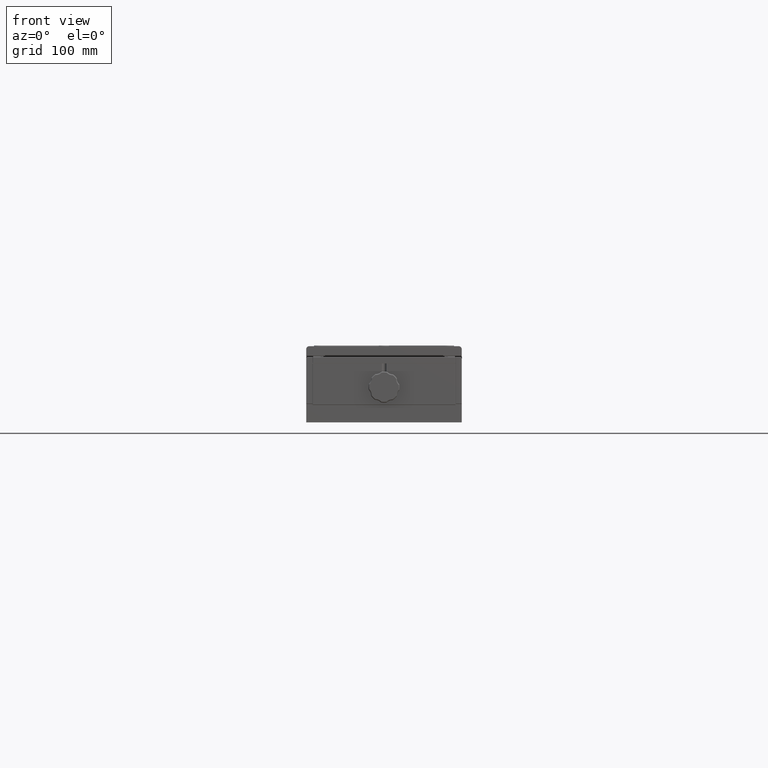
[diagram: clean part render]
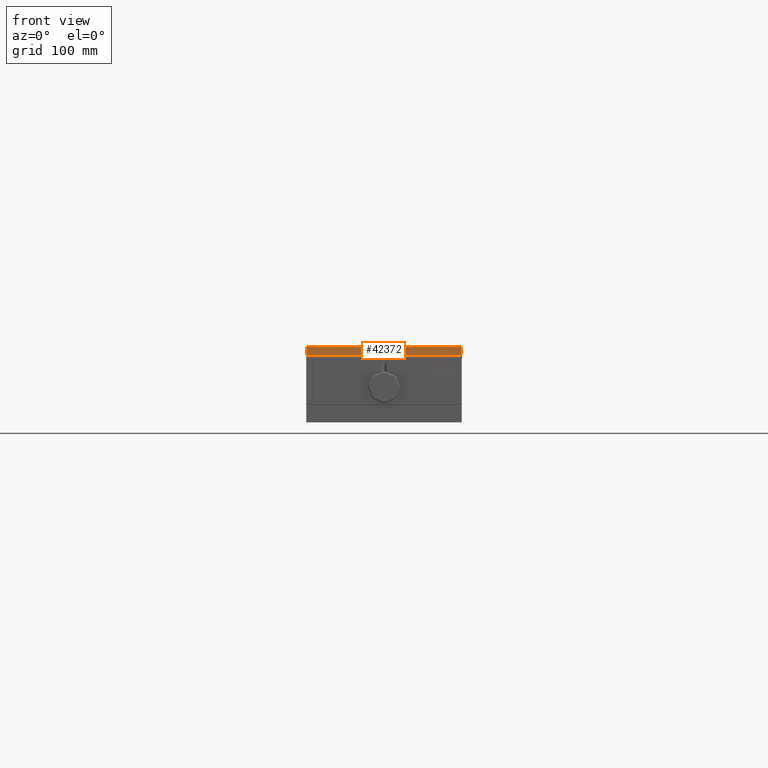
[diagram: same view with one face highlighted and labeled with its STEP entity id]
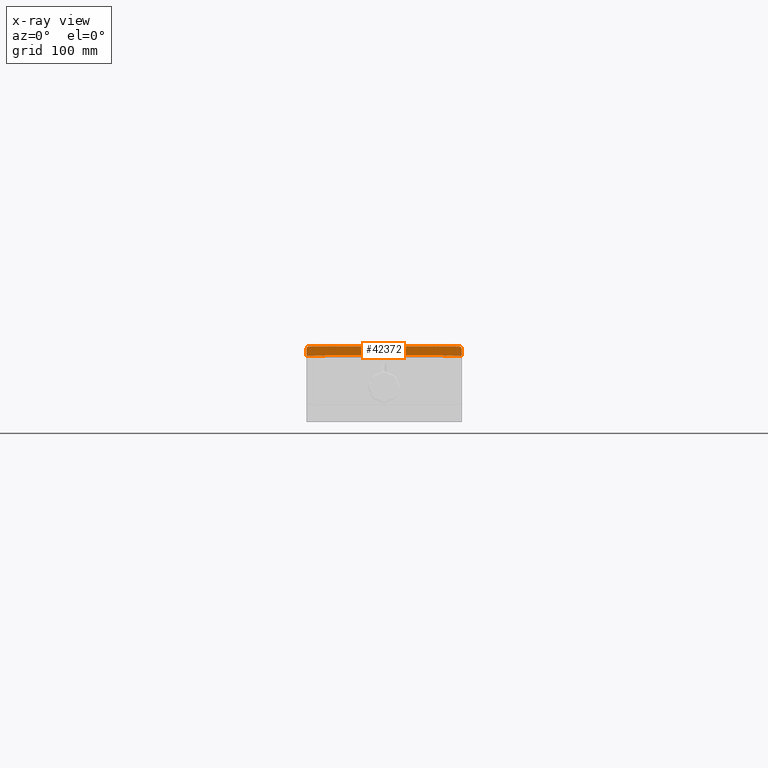
[diagram: x-ray of the same camera — body ghosted, the highlighted face saturated]
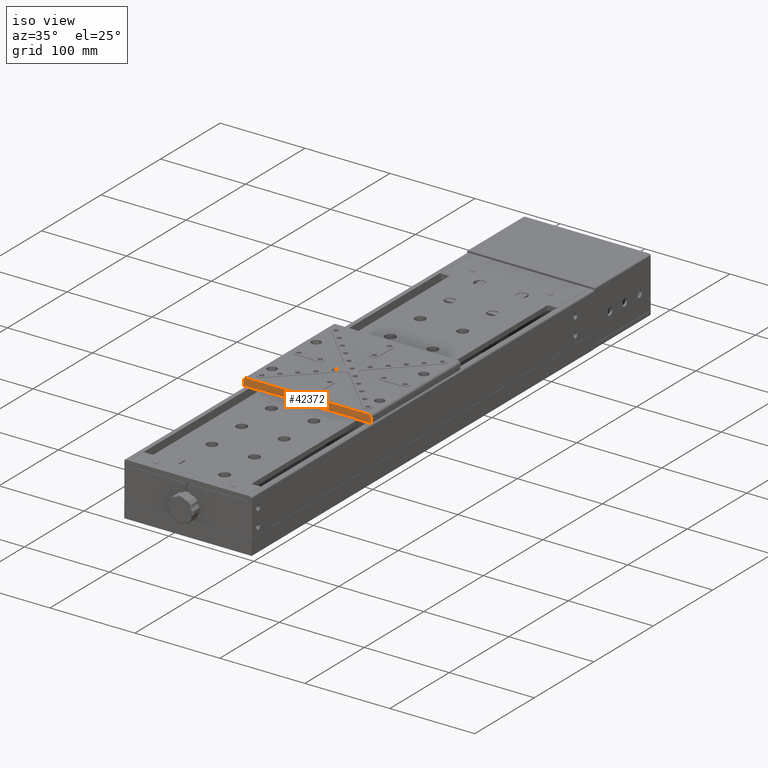
[diagram: same view with one face highlighted and labeled with its STEP entity id]
A machine part, front view. The second image highlights one B-rep face of the part: STEP entity #42372.
The next image is the same camera in x-ray: the body ghosted, the highlighted face saturated — about 0% of this face is hidden behind the body in this view.
A second angle (iso view) of the same face is appended — the face is thin or edge-on in the first view.
In plain terms, the highlighted planar face has unit normal (0, 1, 0).
Its self-contained STEP definition (entity closure, byte-faithful):
#809 = EDGE_CURVE ( 'NONE', #47021, #41344, #19057, .T. ) ;
#1610 = VECTOR ( 'NONE', #73283, 1000.000000000000000 ) ;
#2665 = VECTOR ( 'NONE', #45653, 1000.000000000000000 ) ;
#3257 = PLANE ( 'NONE',  #51713 ) ;
#3353 = DIRECTION ( 'NONE',  ( 0.000000000000000000, -1.000000000000000000, -1.362391624965256008E-20 ) ) ;
#4115 = LINE ( 'NONE', #23058, #55561 ) ;
#4715 = ORIENTED_EDGE ( 'NONE', *, *, #16633, .T. ) ;
#5020 = ORIENTED_EDGE ( 'NONE', *, *, #809, .T. ) ;
#5573 = CARTESIAN_POINT ( 'NONE',  ( -13.58543230288083947, 90.85760192779220290, 42.74665025355620429 ) ) ;
#6547 = ORIENTED_EDGE ( 'NONE', *, *, #81357, .T. ) ;
#7812 = LINE ( 'NONE', #65000, #2665 ) ;
#8813 = CARTESIAN_POINT ( 'NONE',  ( -142.5854323028808039, 90.85760192779230238, 51.34665025355620571 ) ) ;
#9590 = EDGE_CURVE ( 'NONE', #37022, #47021, #48174, .T. ) ;
#9941 = EDGE_CURVE ( 'NONE', #18470, #26630, #7812, .T. ) ;
#11781 = ORIENTED_EDGE ( 'NONE', *, *, #16264, .T. ) ;
#11848 = CIRCLE ( 'NONE', #60470, 2.799999999999999822 ) ;
#12219 = DIRECTION ( 'NONE',  ( 8.668995986095240018E-19, -1.362391624965280082E-20, 1.000000000000000000 ) ) ;
#12696 = CARTESIAN_POINT ( 'NONE',  ( -13.38543230288084018, 90.85760192779220290, 42.24665025355619719 ) ) ;
#15025 = VECTOR ( 'NONE', #66147, 1000.000000000000000 ) ;
#16092 = DIRECTION ( 'NONE',  ( -1.000000000000000000, 0.000000000000000000, 0.000000000000000000 ) ) ;
#16264 = EDGE_CURVE ( 'NONE', #41344, #21236, #4115, .T. ) ;
#16633 = EDGE_CURVE ( 'NONE', #21236, #18470, #65746, .T. ) ;
#16815 = EDGE_CURVE ( 'NONE', #52846, #78300, #67359, .T. ) ;
#18470 = VERTEX_POINT ( 'NONE', #39080 ) ;
#19057 = CIRCLE ( 'NONE', #72968, 2.799999999999997158 ) ;
#19425 = CARTESIAN_POINT ( 'NONE',  ( 4.214567697119144363, 90.85760192779220290, 48.54665025355620145 ) ) ;
#21236 = VERTEX_POINT ( 'NONE', #24513 ) ;
#23058 = CARTESIAN_POINT ( 'NONE',  ( -145.3854323028808153, 90.85760192779230238, 52.04665025355620145 ) ) ;
#23504 = VECTOR ( 'NONE', #61892, 1000.000000000000000 ) ;
#23546 = ORIENTED_EDGE ( 'NONE', *, *, #51869, .T. ) ;
#24513 = CARTESIAN_POINT ( 'NONE',  ( -145.3854323028808153, 90.85760192779230238, 42.24665025355619719 ) ) ;
#24531 = DIRECTION ( 'NONE',  ( 1.000000000000000000, -2.661133787040694931E-16, -8.668995986095240018E-19 ) ) ;
#25625 = VECTOR ( 'NONE', #12219, 1000.000000000000000 ) ;
#26630 = VERTEX_POINT ( 'NONE', #40109 ) ;
#27532 = EDGE_LOOP ( 'NONE', ( #11781, #4715, #62948, #62289, #81434, #6547, #47685, #23546, #63912, #5020 ) ) ;
#29610 = CARTESIAN_POINT ( 'NONE',  ( -142.5854323028808039, 90.85760192779230238, 51.34665025355620571 ) ) ;
#33020 = CARTESIAN_POINT ( 'NONE',  ( 4.214567697119144363, 90.85760192779220290, 42.24665025355619719 ) ) ;
#37022 = VERTEX_POINT ( 'NONE', #63034 ) ;
#37674 = LINE ( 'NONE', #5573, #71459 ) ;
#38075 = CARTESIAN_POINT ( 'NONE',  ( -145.3854323028808153, 90.85760192779230238, 48.54665025355620145 ) ) ;
#39080 = CARTESIAN_POINT ( 'NONE',  ( -127.7854323028808068, 90.85760192779230238, 42.24665025355619719 ) ) ;
#39485 = DIRECTION ( 'NONE',  ( 1.000000000000000000, -2.661133787040694931E-16, -8.668995986095240018E-19 ) ) ;
#40109 = CARTESIAN_POINT ( 'NONE',  ( -127.7854323028808068, 90.85760192779230238, 42.74665025355620429 ) ) ;
#40302 = FACE_OUTER_BOUND ( 'NONE', #27532, .T. ) ;
#41344 = VERTEX_POINT ( 'NONE', #38075 ) ;
#41586 = CARTESIAN_POINT ( 'NONE',  ( 1.414567697119146095, 90.85760192779220290, 48.54665025355620145 ) ) ;
#42372 = ADVANCED_FACE ( 'NONE', ( #40302 ), #3257, .F. ) ;
#42496 = EDGE_CURVE ( 'NONE', #26630, #53667, #37674, .T. ) ;
#44023 = DIRECTION ( 'NONE',  ( 0.000000000000000000, -1.000000000000000000, -1.362391624965256008E-20 ) ) ;
#45236 = DIRECTION ( 'NONE',  ( -1.000000000000000000, 0.000000000000000000, 0.000000000000000000 ) ) ;
#45653 = DIRECTION ( 'NONE',  ( 8.668995986095240018E-19, -1.362391624965280082E-20, 1.000000000000000000 ) ) ;
#46444 = CARTESIAN_POINT ( 'NONE',  ( -145.5854323028810029, 90.85760192779230238, 42.24665025355619719 ) ) ;
#47021 = VERTEX_POINT ( 'NONE', #29610 ) ;
#47685 = ORIENTED_EDGE ( 'NONE', *, *, #16815, .T. ) ;
#48174 = LINE ( 'NONE', #8813, #1610 ) ;
#51713 = AXIS2_PLACEMENT_3D ( 'NONE', #53426, #78167, #78569 ) ;
#51869 = EDGE_CURVE ( 'NONE', #78300, #37022, #11848, .T. ) ;
#52846 = VERTEX_POINT ( 'NONE', #33020 ) ;
#53426 = CARTESIAN_POINT ( 'NONE',  ( -145.5854323028810029, 90.85760192779230238, 52.04665025355620145 ) ) ;
#53667 = VERTEX_POINT ( 'NONE', #56524 ) ;
#53787 = CARTESIAN_POINT ( 'NONE',  ( -145.5854323028810029, 90.85760192779230238, 42.24665025355619719 ) ) ;
#55561 = VECTOR ( 'NONE', #73233, 1000.000000000000000 ) ;
#56524 = CARTESIAN_POINT ( 'NONE',  ( -13.38543230288084018, 90.85760192779220290, 42.74665025355620429 ) ) ;
#57581 = LINE ( 'NONE', #46444, #74077 ) ;
#60470 = AXIS2_PLACEMENT_3D ( 'NONE', #41586, #3353, #16092 ) ;
#61076 = LINE ( 'NONE', #68482, #23504 ) ;
#61892 = DIRECTION ( 'NONE',  ( -8.668995986095240018E-19, 1.362391624965280082E-20, -1.000000000000000000 ) ) ;
#62289 = ORIENTED_EDGE ( 'NONE', *, *, #42496, .T. ) ;
#62948 = ORIENTED_EDGE ( 'NONE', *, *, #9941, .T. ) ;
#63034 = CARTESIAN_POINT ( 'NONE',  ( 1.414567697119146095, 90.85760192779220290, 51.34665025355620571 ) ) ;
#63912 = ORIENTED_EDGE ( 'NONE', *, *, #9590, .T. ) ;
#65000 = CARTESIAN_POINT ( 'NONE',  ( -127.7854323028808068, 90.85760192779230238, 42.54665025355615171 ) ) ;
#65746 = LINE ( 'NONE', #53787, #15025 ) ;
#65887 = EDGE_CURVE ( 'NONE', #53667, #74060, #61076, .T. ) ;
#66147 = DIRECTION ( 'NONE',  ( 1.000000000000000000, -2.661133787040694931E-16, -8.668995986095240018E-19 ) ) ;
#67359 = LINE ( 'NONE', #80556, #25625 ) ;
#68482 = CARTESIAN_POINT ( 'NONE',  ( -13.38543230288084018, 90.85760192779220290, 42.04665025355615171 ) ) ;
#71459 = VECTOR ( 'NONE', #24531, 1000.000000000000000 ) ;
#72968 = AXIS2_PLACEMENT_3D ( 'NONE', #76939, #44023, #45236 ) ;
#73233 = DIRECTION ( 'NONE',  ( -8.668995986095240018E-19, 1.362391624965280082E-20, -1.000000000000000000 ) ) ;
#73283 = DIRECTION ( 'NONE',  ( -1.000000000000000000, 2.661133787040694931E-16, 8.668995986095240018E-19 ) ) ;
#74060 = VERTEX_POINT ( 'NONE', #12696 ) ;
#74077 = VECTOR ( 'NONE', #39485, 1000.000000000000000 ) ;
#76939 = CARTESIAN_POINT ( 'NONE',  ( -142.5854323028808039, 90.85760192779230238, 48.54665025355620145 ) ) ;
#78167 = DIRECTION ( 'NONE',  ( 2.661133787040694931E-16, 1.000000000000000000, 1.362391624965256008E-20 ) ) ;
#78300 = VERTEX_POINT ( 'NONE', #19425 ) ;
#78569 = DIRECTION ( 'NONE',  ( 1.000000000000000000, -2.661133787040694931E-16, 0.000000000000000000 ) ) ;
#80556 = CARTESIAN_POINT ( 'NONE',  ( 4.214567697119144363, 90.85760192779220290, 52.04665025355620145 ) ) ;
#81357 = EDGE_CURVE ( 'NONE', #74060, #52846, #57581, .T. ) ;
#81434 = ORIENTED_EDGE ( 'NONE', *, *, #65887, .T. ) ;